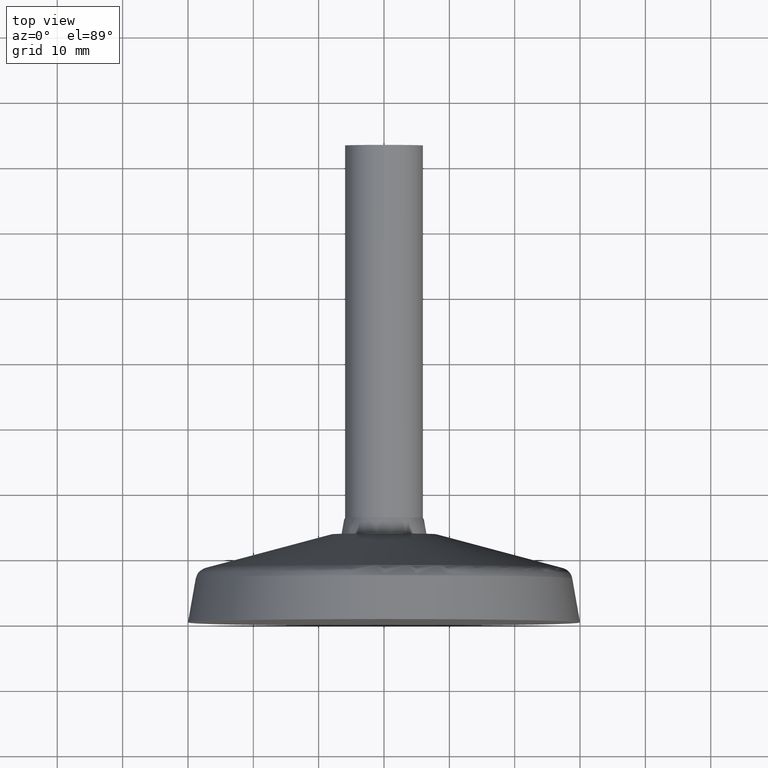
[diagram: clean part render]
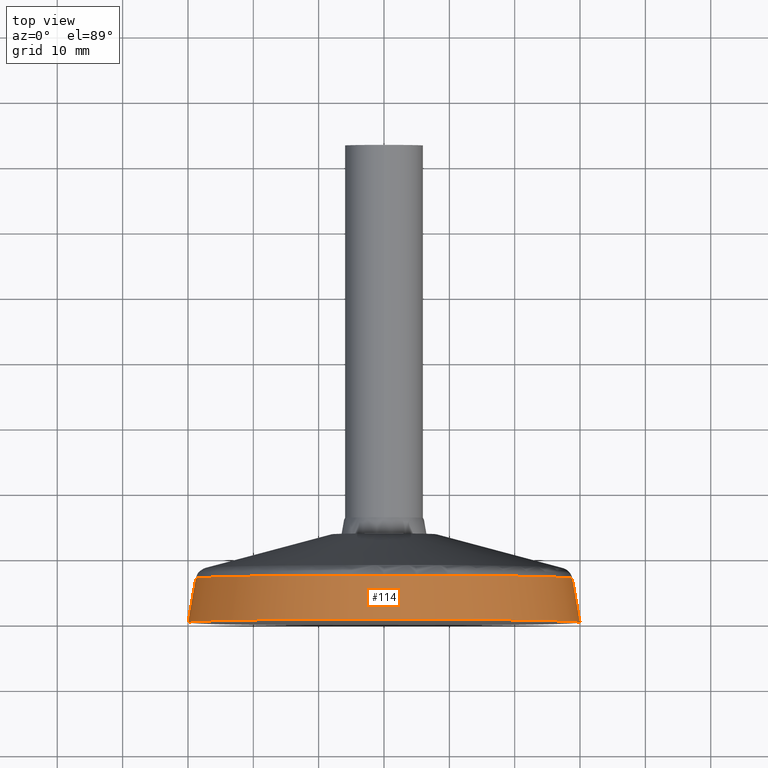
[diagram: same view with one face highlighted and labeled with its STEP entity id]
A machine part, top view. The second image highlights one B-rep face of the part: STEP entity #114.
In plain terms, the highlighted conical surface has half-angle 10 deg.
Its self-contained STEP definition (entity closure, byte-faithful):
#32=CONICAL_SURFACE('',#132,29.2946920771661,10.);
#37=FACE_BOUND('',#61,.T.);
#47=FACE_OUTER_BOUND('',#60,.T.);
#60=EDGE_LOOP('',(#100));
#61=EDGE_LOOP('',(#101));
#71=CIRCLE('',#131,28.8108234734899);
#72=CIRCLE('',#133,30.);
#79=VERTEX_POINT('',#204);
#80=VERTEX_POINT('',#207);
#87=EDGE_CURVE('',#79,#79,#71,.T.);
#88=EDGE_CURVE('',#80,#80,#72,.T.);
#100=ORIENTED_EDGE('',*,*,#88,.F.);
#101=ORIENTED_EDGE('',*,*,#87,.F.);
#114=ADVANCED_FACE('',(#47,#37),#32,.T.);
#131=AXIS2_PLACEMENT_3D('',#205,#164,#165);
#132=AXIS2_PLACEMENT_3D('',#206,#166,#167);
#133=AXIS2_PLACEMENT_3D('',#208,#168,#169);
#164=DIRECTION('center_axis',(1.,0.,0.));
#165=DIRECTION('ref_axis',(0.,0.,-1.));
#166=DIRECTION('center_axis',(-1.,0.,0.));
#167=DIRECTION('ref_axis',(0.,0.,1.));
#168=DIRECTION('center_axis',(-1.,0.,0.));
#169=DIRECTION('ref_axis',(0.,0.,1.));
#204=CARTESIAN_POINT('',(6.74415521511274,-7.05661654952177E-15,28.8108234734899));
#205=CARTESIAN_POINT('Origin',(6.74415521511274,-3.52830827476089E-15,0.));
#206=CARTESIAN_POINT('Origin',(4.,0.,0.));
#207=CARTESIAN_POINT('',(5.51091059616309E-15,0.,30.));
#208=CARTESIAN_POINT('Origin',(4.44089209850063E-15,0.,0.));